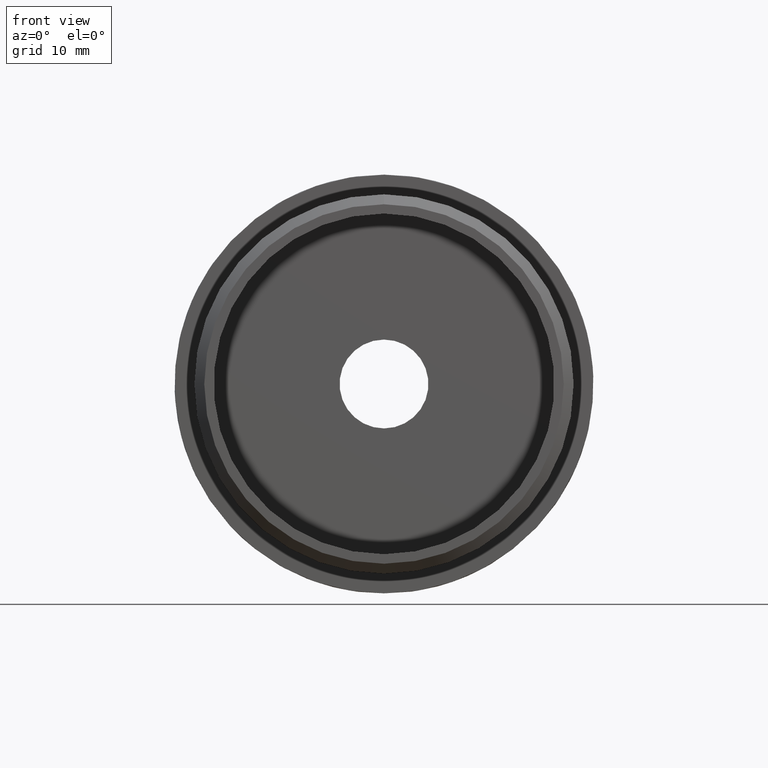
[diagram: clean part render]
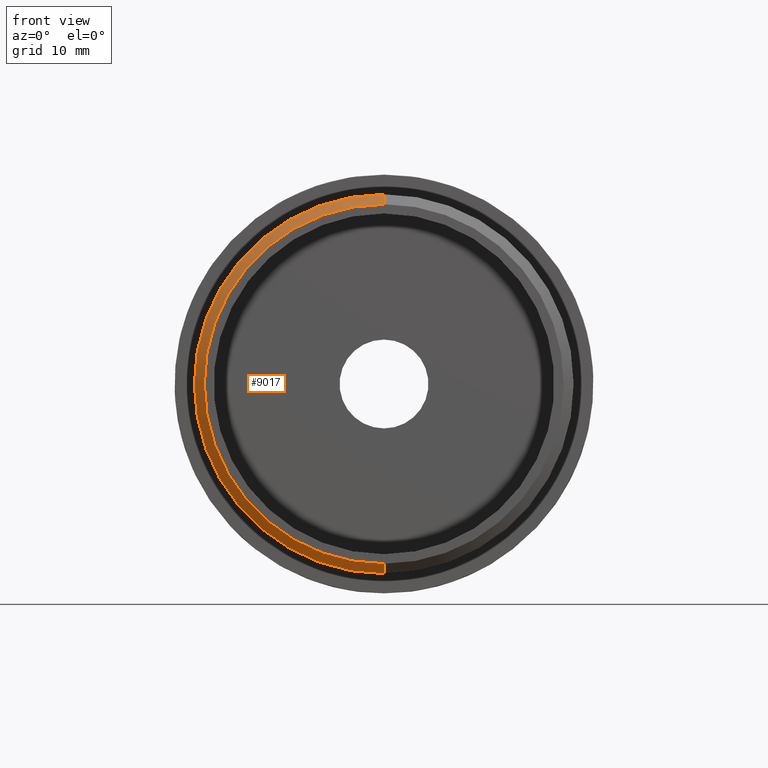
[diagram: same view with one face highlighted and labeled with its STEP entity id]
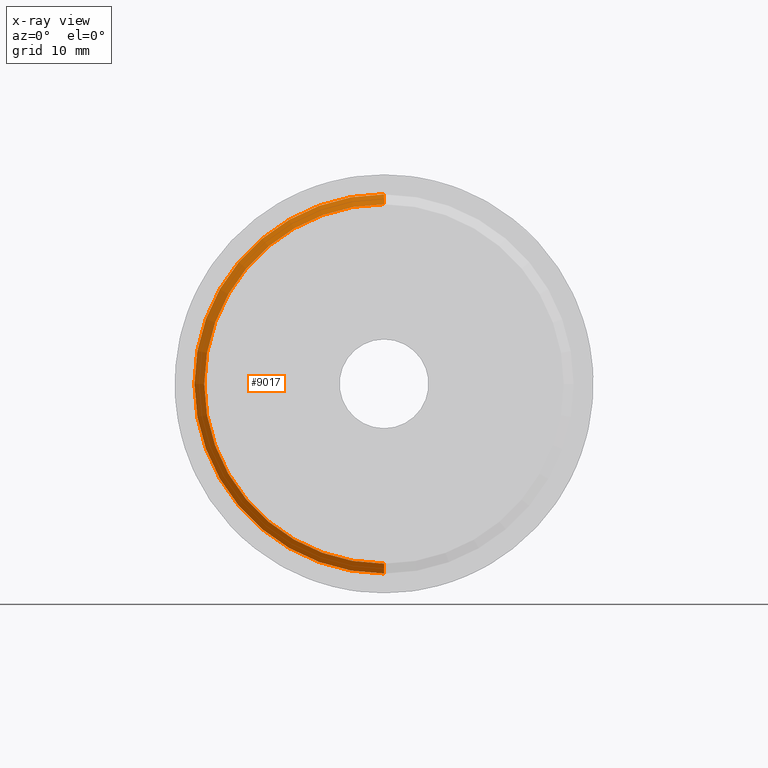
[diagram: x-ray of the same camera — body ghosted, the highlighted face saturated]
A machine part, front view. The second image highlights one B-rep face of the part: STEP entity #9017.
The next image is the same camera in x-ray: the body ghosted, the highlighted face saturated — about 0% of this face is hidden behind the body in this view.
In plain terms, the highlighted conical surface has half-angle 45 deg.
Its self-contained STEP definition (entity closure, byte-faithful):
#30 = EDGE_CURVE ( 'NONE', #7629, #7432, #7909, .T. ) ;
#190 = DIRECTION ( 'NONE',  ( 8.659560562354918100E-017, 0.7071067811865487900, -0.7071067811865463500 ) ) ;
#475 = DIRECTION ( 'NONE',  ( 0.0000000000000000000, 0.7071067811865487900, 0.7071067811865463500 ) ) ;
#538 = ORIENTED_EDGE ( 'NONE', *, *, #5901, .F. ) ;
#1421 = LINE ( 'NONE', #10406, #11072 ) ;
#1462 = VECTOR ( 'NONE', #475, 1000.000000000000000 ) ;
#1992 = VERTEX_POINT ( 'NONE', #4130 ) ;
#2218 = DIRECTION ( 'NONE',  ( 0.0000000000000000000, 0.0000000000000000000, 1.000000000000000000 ) ) ;
#2655 = CARTESIAN_POINT ( 'NONE',  ( 2.290089514405549300E-015, -28.99999999999999600, -18.19999999999998200 ) ) ;
#3084 = DIRECTION ( 'NONE',  ( 0.0000000000000000000, -1.000000000000000000, 0.0000000000000000000 ) ) ;
#3167 = DIRECTION ( 'NONE',  ( 0.0000000000000000000, 1.000000000000000000, 0.0000000000000000000 ) ) ;
#4130 = CARTESIAN_POINT ( 'NONE',  ( 0.0000000000000000000, -27.99999999999997500, 19.19999999999999900 ) ) ;
#4149 = CARTESIAN_POINT ( 'NONE',  ( 0.0000000000000000000, -28.99999999999999600, 0.0000000000000000000 ) ) ;
#4964 = DIRECTION ( 'NONE',  ( 0.0000000000000000000, 1.000000000000000000, 0.0000000000000000000 ) ) ;
#5901 = EDGE_CURVE ( 'NONE', #7432, #11855, #1421, .T. ) ;
#5902 = DIRECTION ( 'NONE',  ( 0.0000000000000000000, 0.0000000000000000000, -1.000000000000000000 ) ) ;
#5995 = CARTESIAN_POINT ( 'NONE',  ( 0.0000000000000000000, -28.99999999999999600, 18.19999999999998200 ) ) ;
#6395 = AXIS2_PLACEMENT_3D ( 'NONE', #10546, #4964, #11476 ) ;
#6400 = AXIS2_PLACEMENT_3D ( 'NONE', #4149, #3084, #5902 ) ;
#6708 = CIRCLE ( 'NONE', #6395, 19.19999999999999900 ) ;
#6920 = ORIENTED_EDGE ( 'NONE', *, *, #9326, .F. ) ;
#7432 = VERTEX_POINT ( 'NONE', #2655 ) ;
#7629 = VERTEX_POINT ( 'NONE', #9623 ) ;
#7909 = CIRCLE ( 'NONE', #6400, 18.19999999999998200 ) ;
#8173 = CONICAL_SURFACE ( 'NONE', #10370, 18.19999999999998200, 0.7853981633974466100 ) ;
#8487 = EDGE_CURVE ( 'NONE', #7629, #1992, #11107, .T. ) ;
#8755 = CARTESIAN_POINT ( 'NONE',  ( 0.0000000000000000000, -28.99999999999999600, 0.0000000000000000000 ) ) ;
#9017 = ADVANCED_FACE ( 'NONE', ( #10962 ), #8173, .T. ) ;
#9326 = EDGE_CURVE ( 'NONE', #11855, #1992, #6708, .T. ) ;
#9408 = CARTESIAN_POINT ( 'NONE',  ( 2.351321854362917700E-015, -27.99999999999997500, -19.19999999999999900 ) ) ;
#9623 = CARTESIAN_POINT ( 'NONE',  ( 0.0000000000000000000, -28.99999999999999600, 18.19999999999998200 ) ) ;
#9872 = ORIENTED_EDGE ( 'NONE', *, *, #30, .F. ) ;
#10370 = AXIS2_PLACEMENT_3D ( 'NONE', #8755, #3167, #2218 ) ;
#10406 = CARTESIAN_POINT ( 'NONE',  ( 2.228857174448180600E-015, -28.99999999999999600, -18.19999999999998200 ) ) ;
#10546 = CARTESIAN_POINT ( 'NONE',  ( 0.0000000000000000000, -27.99999999999997500, 0.0000000000000000000 ) ) ;
#10632 = ORIENTED_EDGE ( 'NONE', *, *, #8487, .T. ) ;
#10962 = FACE_OUTER_BOUND ( 'NONE', #11308, .T. ) ;
#11072 = VECTOR ( 'NONE', #190, 1000.000000000000000 ) ;
#11107 = LINE ( 'NONE', #5995, #1462 ) ;
#11308 = EDGE_LOOP ( 'NONE', ( #538, #9872, #10632, #6920 ) ) ;
#11476 = DIRECTION ( 'NONE',  ( 0.0000000000000000000, 0.0000000000000000000, -1.000000000000000000 ) ) ;
#11855 = VERTEX_POINT ( 'NONE', #9408 ) ;